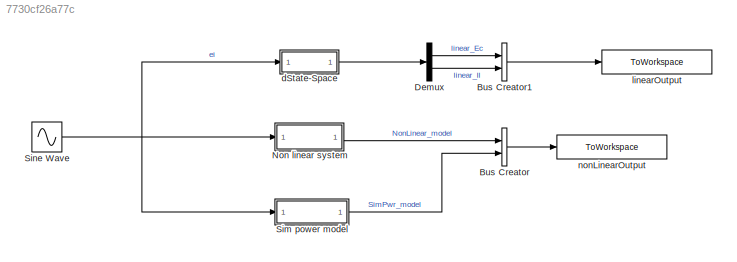
MODEL slx_7730cf26a77c
KIND model
CONFIG StopFcn = save(wSaveFileName,wLinearOutputName,wNonLinearOutputName)
BLOCK [BusCreator] Bus Creator
  DisplayOption = bar
  Inputs = 2
  Ports = [2, 1]
BLOCK [BusCreator] Bus Creator1
  DisplayOption = bar
  Inputs = 2
  Ports = [2, 1]
BLOCK [Demux] Demux
  DisplayOption = bar
  Outputs = 2
  Ports = [1, 2]
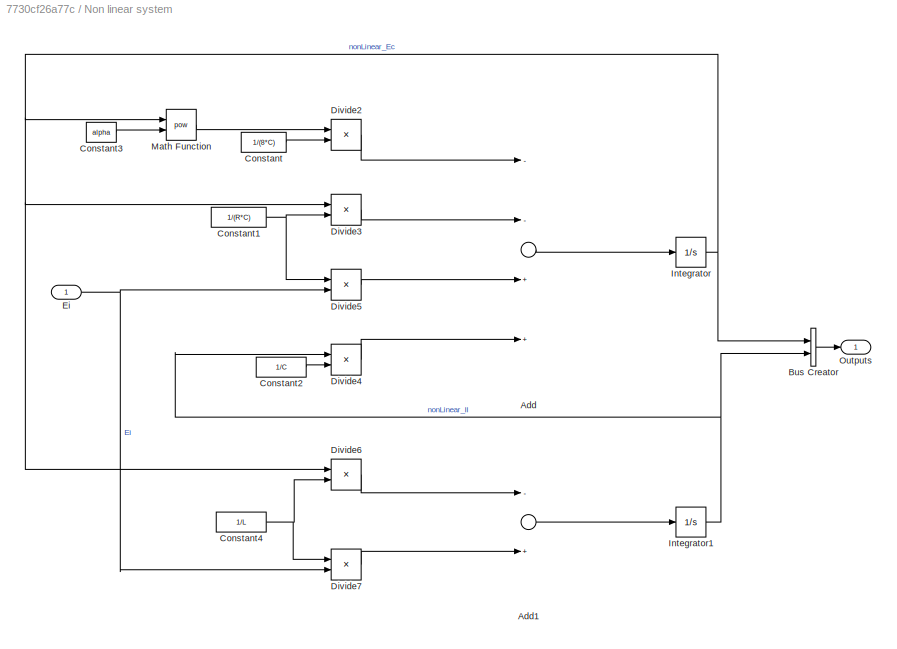
BLOCK [SubSystem] Non linear system
  Ports = [1, 1]
  RequestExecContextInheritance = off
BLOCK [Sum] Non linear system/Add
  InputSameDT = off
  Inputs = --++
  OutDataTypeStr = Inherit: Inherit via internal rule
  Ports = [4, 1]
  SaturateOnIntegerOverflow = off
BLOCK [Sum] Non linear system/Add1
  InputSameDT = off
  Inputs = -+
  OutDataTypeStr = Inherit: Inherit via internal rule
  Ports = [2, 1]
  SaturateOnIntegerOverflow = off
BLOCK [BusCreator] Non linear system/Bus Creator
  DisplayOption = bar
  Inputs = 2
  Ports = [2, 1]
BLOCK [Constant] Non linear system/Constant
  Value = 1/(8*C)
BLOCK [Constant] Non linear system/Constant1
  Value = 1/(R*C)
BLOCK [Constant] Non linear system/Constant2
  Value = 1/C
BLOCK [Constant] Non linear system/Constant3
  Value = alpha
BLOCK [Constant] Non linear system/Constant4
  Value = 1/L
BLOCK [Product] Non linear system/Divide2
  InputSameDT = off
  Inputs = **
  OutDataTypeStr = Inherit: Inherit via internal rule
  Ports = [2, 1]
  RndMeth = Floor
  SaturateOnIntegerOverflow = off
BLOCK [Product] Non linear system/Divide3
  InputSameDT = off
  Inputs = **
  OutDataTypeStr = Inherit: Inherit via internal rule
  Ports = [2, 1]
  RndMeth = Floor
  SaturateOnIntegerOverflow = off
BLOCK [Product] Non linear system/Divide4
  InputSameDT = off
  Inputs = **
  OutDataTypeStr = Inherit: Inherit via internal rule
  Ports = [2, 1]
  RndMeth = Floor
  SaturateOnIntegerOverflow = off
BLOCK [Product] Non linear system/Divide5
  InputSameDT = off
  Inputs = **
  OutDataTypeStr = Inherit: Inherit via internal rule
  Ports = [2, 1]
  RndMeth = Floor
  SaturateOnIntegerOverflow = off
BLOCK [Product] Non linear system/Divide6
  InputSameDT = off
  Inputs = **
  OutDataTypeStr = Inherit: Inherit via internal rule
  Ports = [2, 1]
  RndMeth = Floor
  SaturateOnIntegerOverflow = off
BLOCK [Product] Non linear system/Divide7
  InputSameDT = off
  Inputs = **
  OutDataTypeStr = Inherit: Inherit via internal rule
  Ports = [2, 1]
  RndMeth = Floor
  SaturateOnIntegerOverflow = off
BLOCK [Inport] Non linear system/Ei
  IconDisplay = Port number
BLOCK [Integrator] Non linear system/Integrator
  Ports = [1, 1]
BLOCK [Integrator] Non linear system/Integrator1
  Ports = [1, 1]
BLOCK [Math] Non linear system/Math Function
  Operator = pow
  Ports = [2, 1]
BLOCK [Outport] Non linear system/Outputs
  IconDisplay = Port number
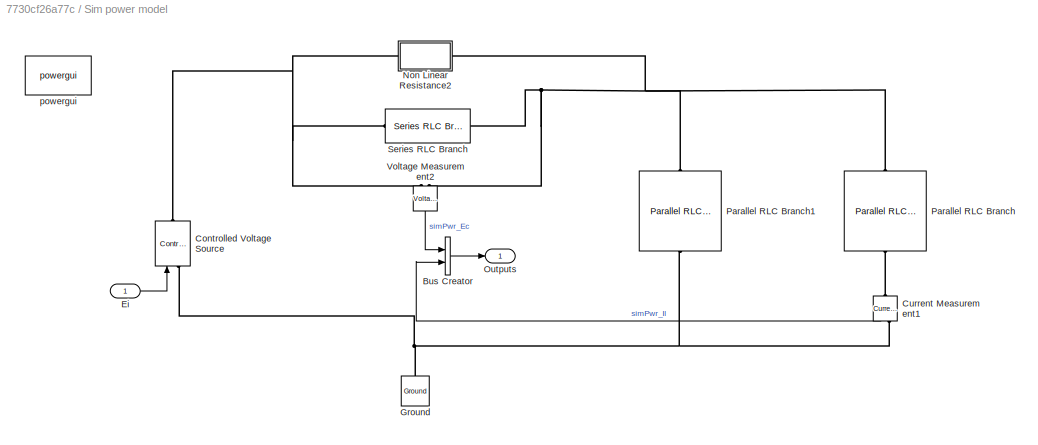
BLOCK [SubSystem] Sim power model
  Ports = [1, 1]
  RequestExecContextInheritance = off
BLOCK [BusCreator] Sim power model/Bus Creator
  DisplayOption = bar
  Inputs = 2
  Ports = [2, 1]
BLOCK [Reference] Sim power model/Controlled Voltage Source  REF=powerlib/Electrical
Sources/Controlled Voltage Source
  Amplitude = 10
  Frequency = 0
  Initialize = on
  Measurements = None
  Phase = 0
  Ports = [1, 0, 0, 0, 0, 1, 1]
  SourceBlock = powerlib/Electrical\nSources/Controlled Voltage Source
  SourceType = Controlled Voltage Source
  Source_Type = AC
BLOCK [Reference] Sim power model/Current Measurement1  REF=powerlib/Measurements/Current Measurement
  OutputType = Complex
  PSBequivalent = 0
  PhasorSimulation = off
  Ports = [0, 1, 0, 0, 0, 1, 1]
  SourceBlock = powerlib/Measurements/Current Measurement
  SourceType = Current Measurement
  UserDataPersistent = on
BLOCK [Inport] Sim power model/Ei
  IconDisplay = Port number
BLOCK [Reference] Sim power model/Ground  REF=powerlib/Elements/Ground
  LConnTagsString = a
  Ports = [0, 0, 0, 0, 0, 1]
  SourceBlock = powerlib/Elements/Ground
  SourceType = Ground
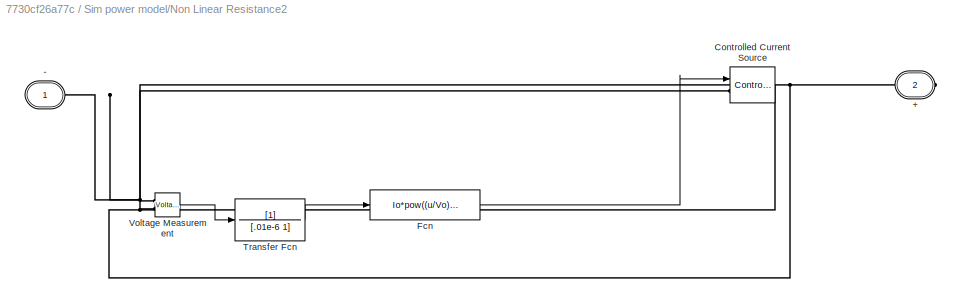
BLOCK [SubSystem] Sim power model/Non Linear Resistance2
  Ports = [0, 0, 0, 0, 0, 1, 1]
  RequestExecContextInheritance = off
BLOCK [PMIOPort] Sim power model/Non Linear Resistance2/+
  Port = 2
  Side = Right
  Tag = PMCPort
BLOCK [PMIOPort] Sim power model/Non Linear Resistance2/-
  Port = 1
  Side = Left
  Tag = PMCPort
BLOCK [Reference] Sim power model/Non Linear Resistance2/Controlled Current Source  REF=powerlib/Electrical
Sources/Controlled Current Source
  Amplitude = 0
  Frequency = 0
  Initialize = on
  Measurements = Current
  Phase = 0
  Ports = [1, 0, 0, 0, 0, 1, 1]
  SourceBlock = powerlib/Electrical\nSources/Controlled Current Source
  SourceType = Controlled Current Source
  Source_Type = AC
BLOCK [Fcn] Sim power model/Non Linear Resistance2/Fcn
  Expr = Io*pow((u/Vo),alpha)
BLOCK [TransferFcn] Sim power model/Non Linear Resistance2/Transfer Fcn
  Denominator = [.01e-6 1]
BLOCK [Reference] Sim power model/Non Linear Resistance2/Voltage Measurement  REF=powerlib/Measurements/Voltage Measurement
  OutputType = Complex
  PSBequivalent = 0
  PhasorSimulation = off
  Ports = [0, 1, 0, 0, 0, 2]
  SourceBlock = powerlib/Measurements/Voltage Measurement
  SourceType = Voltage Measurement
  UserDataPersistent = on
BLOCK [Outport] Sim power model/Outputs
  IconDisplay = Port number
BLOCK [Reference] Sim power model/Parallel RLC Branch  REF=powerlib/Elements/Parallel RLC Branch
  AttributesFormatString = \n
  BranchType = L
  Capacitance = 1e-6
  Inductance = L
  InitialCurrent = 0
  InitialVoltage = 0
  LConnTagsString = a
  Measurements = Branch current
  Ports = [0, 0, 0, 0, 0, 1, 1]
  RConnTagsString = __new0
  Resistance = R
  SetiL0 = on
  Setx0 = off
  SourceBlock = powerlib/Elements/Parallel RLC Branch
  SourceType = Parallel RLC Branch
BLOCK [Reference] Sim power model/Parallel RLC Branch1  REF=powerlib/Elements/Parallel RLC Branch
  AttributesFormatString = \n
  BranchType = R
  Capacitance = 1e-6
  Inductance = L
  InitialCurrent = 0
  InitialVoltage = 0
  LConnTagsString = a
  Measurements = Branch current
  Ports = [0, 0, 0, 0, 0, 1, 1]
  RConnTagsString = __new0
  Resistance = R
  SetiL0 = on
  Setx0 = off
  SourceBlock = powerlib/Elements/Parallel RLC Branch
  SourceType = Parallel RLC Branch
BLOCK [Reference] Sim power model/Series RLC Branch  REF=powerlib/Elements/Series RLC Branch
  BranchType = C
  Capacitance = C
  Inductance = 1e-3
  InitialCurrent = 0
  InitialVoltage = 0
  LConnTagsString = __new0
  Measurements = None
  Ports = [0, 0, 0, 0, 0, 1, 1]
  RConnTagsString = __new0
  Resistance = 1
  SetiL0 = off
  Setx0 = on
  SourceBlock = powerlib/Elements/Series RLC Branch
  SourceType = Series RLC Branch
BLOCK [Reference] Sim power model/Voltage Measurement2  REF=powerlib/Measurements/Voltage Measurement
  OutputType = Complex
  PSBequivalent = 0
  PhasorSimulation = off
  Ports = [0, 1, 0, 0, 0, 2]
  SourceBlock = powerlib/Measurements/Voltage Measurement
  SourceType = Voltage Measurement
  UserDataPersistent = on
BLOCK [Reference] Sim power model/powergui  REF=powerlib/powergui
  DisableRonSwitches = off
  DisableSnubberDevices = off
  DisableVfSwitches = off
  DisplayEquations = off
  DisplayStyle = 1
  EnableUseOfTLC = off
  ErrMax = 1e-4
  Frange = [0:2:500]
  FreqAxis = off
  FunctionMessages = off
  HookPort = off
  Interpol = off
  Iterations = 50
  MaxFrequency = 1000
  Pbase = 100e6
  Ports = []
  Priority = 1
  ResistiveCurrentMeasurement = off
  RestoreLinks = warning
  RmsSteady = 1
  SPID = off
  SampleTime = 100
  ShowGrid = off
  SolverType = Tustin
  SourceBlock = powerlib/powergui
  SourceType = PSB option menu block
  StartTime = 0.0
  SwTol = 0
  Ts = 0
  UnitsV = kV
  UnitsW = MW
  UserDataPersistent = on
  Xlog = on
  Ylog = off
  ZoomFFT = off
  cycles = 1
  display = off
  echomessages = off
  frequency = 60
  frequencyindice = 0
  frequencyindicesteady = 1
  fundamental = 60
  methode = off
  save = off
  structure = 0
  variable = ZData
  x0status = blocks
BLOCK [Sin] Sine Wave
  Amplitude = Ai
  Bias = Ei
  Ports = [0, 1]
  SampleTime = 0
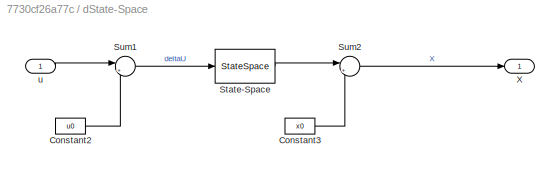
BLOCK [SubSystem] dState-Space
  Ports = [1, 1]
  RequestExecContextInheritance = off
BLOCK [Constant] dState-Space/Constant2
  Value = u0
BLOCK [Constant] dState-Space/Constant3
  Value = x0
BLOCK [StateSpace] dState-Space/State-Space
  A = A
  B = B
  C = C
  D = D
  Ports = [1, 1]
  X0 = 0
BLOCK [Sum] dState-Space/Sum1
  IconShape = round
  InputSameDT = off
  Inputs = |+-
  OutDataTypeStr = Inherit: Inherit via internal rule
  Ports = [2, 1]
  SaturateOnIntegerOverflow = off
BLOCK [Sum] dState-Space/Sum2
  IconShape = round
  InputSameDT = off
  Inputs = |++
  OutDataTypeStr = Inherit: Inherit via internal rule
  Ports = [2, 1]
  SaturateOnIntegerOverflow = off
BLOCK [Outport] dState-Space/X
  IconDisplay = Port number
BLOCK [Inport] dState-Space/u
  IconDisplay = Port number
BLOCK [ToWorkspace] linearOutput
  MaxDataPoints = inf
  Ports = [1]
  SampleTime = -1
  SaveFormat = Timeseries
  VariableName = linear_circuit
BLOCK [ToWorkspace] nonLinearOutput
  MaxDataPoints = inf
  Ports = [1]
  SampleTime = -1
  SaveFormat = Timeseries
  VariableName = nonLinear_circuit
LINE Bus Creator1:1 -> linearOutput:1
LINE Bus Creator:1 -> nonLinearOutput:1
LINE Demux:1 -> Bus Creator1:1
LINE Demux:2 -> Bus Creator1:2
LINE Non linear system/Add1:1 -> Non linear system/Integrator1:1
LINE Non linear system/Add:1 -> Non linear system/Integrator:1
LINE Non linear system/Bus Creator:1 -> Non linear system/Outputs:1
NET Non linear system/Constant1:1 -> Non linear system/Divide3:2, Non linear system/Divide5:1
LINE Non linear system/Constant2:1 -> Non linear system/Divide4:2
LINE Non linear system/Constant3:1 -> Non linear system/Math Function:2
NET Non linear system/Constant4:1 -> Non linear system/Divide6:2, Non linear system/Divide7:1
LINE Non linear system/Constant:1 -> Non linear system/Divide2:2
LINE Non linear system/Divide2:1 -> Non linear system/Add:1
LINE Non linear system/Divide3:1 -> Non linear system/Add:2
LINE Non linear system/Divide4:1 -> Non linear system/Add:4
LINE Non linear system/Divide5:1 -> Non linear system/Add:3
LINE Non linear system/Divide6:1 -> Non linear system/Add1:1
LINE Non linear system/Divide7:1 -> Non linear system/Add1:2
NET Non linear system/Ei:1 -> Non linear system/Divide5:2, Non linear system/Divide7:2
NET Non linear system/Integrator1:1 -> Non linear system/Bus Creator:2, Non linear system/Divide4:1
NET Non linear system/Integrator:1 -> Non linear system/Bus Creator:1, Non linear system/Divide3:1, Non linear system/Divide6:1, Non linear system/Math Function:1
LINE Non linear system/Math Function:1 -> Non linear system/Divide2:1
LINE Non linear system:1 -> Bus Creator:1
LINE Sim power model/Bus Creator:1 -> Sim power model/Outputs:1
LINE Sim power model/Current Measurement1:1 -> Sim power model/Bus Creator:2
LINE Sim power model/Ei:1 -> Sim power model/Controlled Voltage Source:1
LINE Sim power model/Non Linear Resistance2/Fcn:1 -> Sim power model/Non Linear Resistance2/Controlled Current Source:1
LINE Sim power model/Non Linear Resistance2/Transfer Fcn:1 -> Sim power model/Non Linear Resistance2/Fcn:1
LINE Sim power model/Non Linear Resistance2/Voltage Measurement:1 -> Sim power model/Non Linear Resistance2/Transfer Fcn:1
LINE Sim power model/Voltage Measurement2:1 -> Sim power model/Bus Creator:1
LINE Sim power model:1 -> Bus Creator:2
NET Sine Wave:1 -> Non linear system:1, Sim power model:1, dState-Space:1
LINE dState-Space/Constant2:1 -> dState-Space/Sum1:2
LINE dState-Space/Constant3:1 -> dState-Space/Sum2:2
LINE dState-Space/State-Space:1 -> dState-Space/Sum2:1
LINE dState-Space/Sum1:1 -> dState-Space/State-Space:1
LINE dState-Space/Sum2:1 -> dState-Space/X:1
LINE dState-Space/u:1 -> dState-Space/Sum1:1
LINE dState-Space:1 -> Demux:1
PNET net1: Sim power model/Controlled Voltage Source:LConn1 -- Sim power model/Current Measurement1:RConn1 -- Sim power model/Ground:LConn1 -- Sim power model/Parallel RLC Branch1:RConn1
PNET net2: Sim power model/Controlled Voltage Source:RConn1 -- Sim power model/Non Linear Resistance2:LConn1 -- Sim power model/Series RLC Branch:LConn1 -- Sim power model/Voltage Measurement2:LConn1
PLINE Sim power model/Current Measurement1:LConn1 -- Sim power model/Parallel RLC Branch:RConn1
PNET net3: Sim power model/Non Linear Resistance2/+:RConn1 -- Sim power model/Non Linear Resistance2/Controlled Current Source:RConn1 -- Sim power model/Non Linear Resistance2/Voltage Measurement:LConn2
PNET net4: Sim power model/Non Linear Resistance2/-:RConn1 -- Sim power model/Non Linear Resistance2/Controlled Current Source:LConn1 -- Sim power model/Non Linear Resistance2/Voltage Measurement:LConn1
PNET net5: Sim power model/Non Linear Resistance2:RConn1 -- Sim power model/Parallel RLC Branch1:LConn1 -- Sim power model/Parallel RLC Branch:LConn1 -- Sim power model/Series RLC Branch:RConn1 -- Sim power model/Voltage Measurement2:LConn2
note: NET lines group one-source signal fan-out (src -> all destinations, sorted); 1:1 wires keep LINE; PNET lines group multi-terminal physical nets as a canonical sorted terminal list (undirected conserving connections); 2-terminal nets keep the pairwise PLINE form
